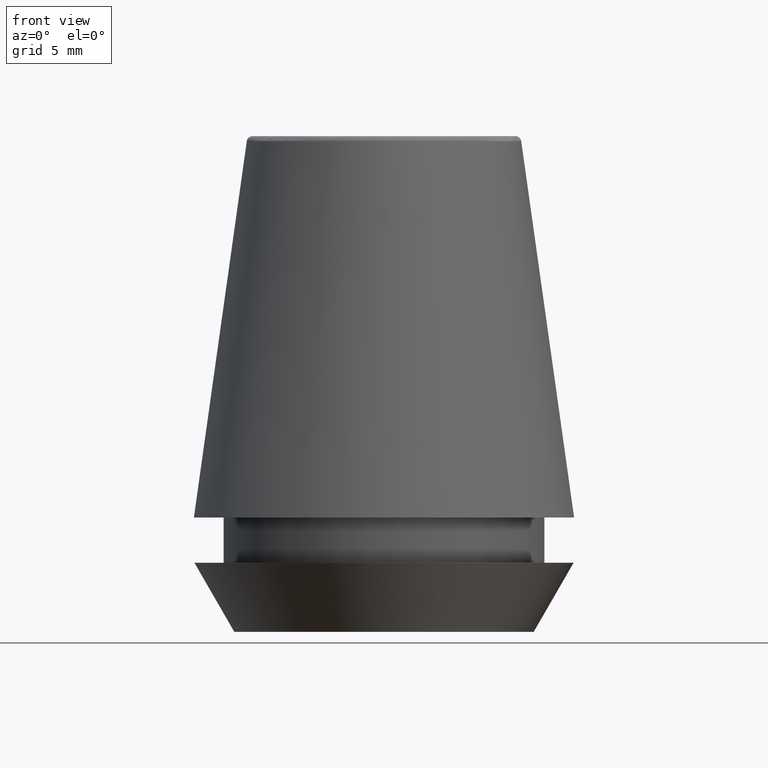
[diagram: clean part render]
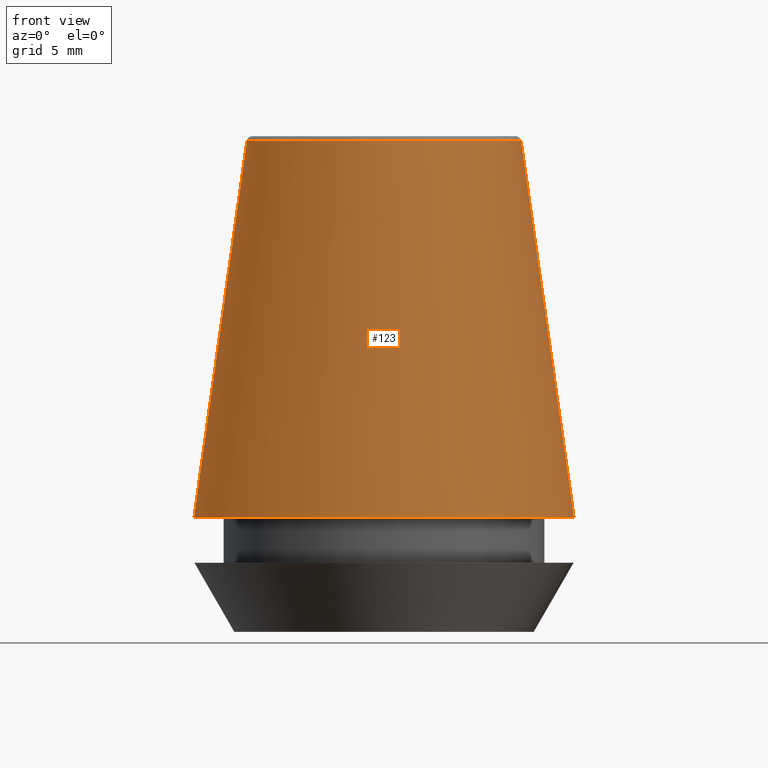
[diagram: same view with one face highlighted and labeled with its STEP entity id]
A machine part, front view. The second image highlights one B-rep face of the part: STEP entity #123.
In plain terms, the highlighted conical surface has half-angle 8 deg.
Its self-contained STEP definition (entity closure, byte-faithful):
#2 = CARTESIAN_POINT ( 'NONE',  ( 0.0000000000000000000, 0.0000000000000000000, 33.65566924038402900 ) ) ;
#3 = ORIENTED_EDGE ( 'NONE', *, *, #218, .T. ) ;
#29 = DIRECTION ( 'NONE',  ( 1.000000000000000000, 0.0000000000000000000, 0.0000000000000000000 ) ) ;
#38 = VECTOR ( 'NONE', #47, 1000.000000000000000 ) ;
#40 = CARTESIAN_POINT ( 'NONE',  ( -9.408710285118862900, 0.0000000000000000000, 33.65566924038402900 ) ) ;
#41 = CONICAL_SURFACE ( 'NONE', #183, 13.03657776635556700, 0.1396263401595396500 ) ;
#47 = DIRECTION ( 'NONE',  ( 0.1391731009600587800, 1.704378926181474000E-017, -0.9902680687415712500 ) ) ;
#66 = LINE ( 'NONE', #269, #285 ) ;
#99 = CARTESIAN_POINT ( 'NONE',  ( 13.03657776635556700, 1.596520323340289600E-015, 7.842050807568876200 ) ) ;
#101 = CARTESIAN_POINT ( 'NONE',  ( 0.0000000000000000000, 0.0000000000000000000, 7.842050807568876200 ) ) ;
#115 = CIRCLE ( 'NONE', #355, 9.408710285118862900 ) ;
#117 = VERTEX_POINT ( 'NONE', #248 ) ;
#123 = ADVANCED_FACE ( 'NONE', ( #378 ), #41, .T. ) ;
#129 = DIRECTION ( 'NONE',  ( 0.0000000000000000000, 0.0000000000000000000, -1.000000000000000000 ) ) ;
#145 = EDGE_LOOP ( 'NONE', ( #210, #364, #162, #3 ) ) ;
#148 = DIRECTION ( 'NONE',  ( -0.0000000000000000000, -0.0000000000000000000, 1.000000000000000000 ) ) ;
#149 = CIRCLE ( 'NONE', #298, 13.03657776635556700 ) ;
#159 = DIRECTION ( 'NONE',  ( -1.000000000000000000, 0.0000000000000000000, 0.0000000000000000000 ) ) ;
#162 = ORIENTED_EDGE ( 'NONE', *, *, #245, .T. ) ;
#167 = VERTEX_POINT ( 'NONE', #99 ) ;
#179 = CARTESIAN_POINT ( 'NONE',  ( -13.03657776635556700, 0.0000000000000000000, 7.842050807568876200 ) ) ;
#183 = AXIS2_PLACEMENT_3D ( 'NONE', #101, #129, #159 ) ;
#192 = EDGE_CURVE ( 'NONE', #334, #117, #115, .T. ) ;
#210 = ORIENTED_EDGE ( 'NONE', *, *, #347, .F. ) ;
#218 = EDGE_CURVE ( 'NONE', #315, #167, #149, .T. ) ;
#223 = LINE ( 'NONE', #286, #38 ) ;
#245 = EDGE_CURVE ( 'NONE', #334, #315, #66, .T. ) ;
#248 = CARTESIAN_POINT ( 'NONE',  ( 9.408710285118862900, 1.374377508408924700E-015, 33.65566924038402900 ) ) ;
#269 = CARTESIAN_POINT ( 'NONE',  ( -13.03657776635556700, 0.0000000000000000000, 7.842050807568876200 ) ) ;
#273 = DIRECTION ( 'NONE',  ( -0.0000000000000000000, -0.0000000000000000000, 1.000000000000000000 ) ) ;
#285 = VECTOR ( 'NONE', #348, 1000.000000000000000 ) ;
#286 = CARTESIAN_POINT ( 'NONE',  ( 13.03657776635556700, 1.596520323340289600E-015, 7.842050807568876200 ) ) ;
#298 = AXIS2_PLACEMENT_3D ( 'NONE', #327, #148, #29 ) ;
#302 = DIRECTION ( 'NONE',  ( 1.000000000000000000, 0.0000000000000000000, 0.0000000000000000000 ) ) ;
#315 = VERTEX_POINT ( 'NONE', #179 ) ;
#327 = CARTESIAN_POINT ( 'NONE',  ( 0.0000000000000000000, 0.0000000000000000000, 7.842050807568876200 ) ) ;
#334 = VERTEX_POINT ( 'NONE', #40 ) ;
#347 = EDGE_CURVE ( 'NONE', #117, #167, #223, .T. ) ;
#348 = DIRECTION ( 'NONE',  ( -0.1391731009600587800, 0.0000000000000000000, -0.9902680687415712500 ) ) ;
#355 = AXIS2_PLACEMENT_3D ( 'NONE', #2, #273, #302 ) ;
#364 = ORIENTED_EDGE ( 'NONE', *, *, #192, .F. ) ;
#378 = FACE_OUTER_BOUND ( 'NONE', #145, .T. ) ;